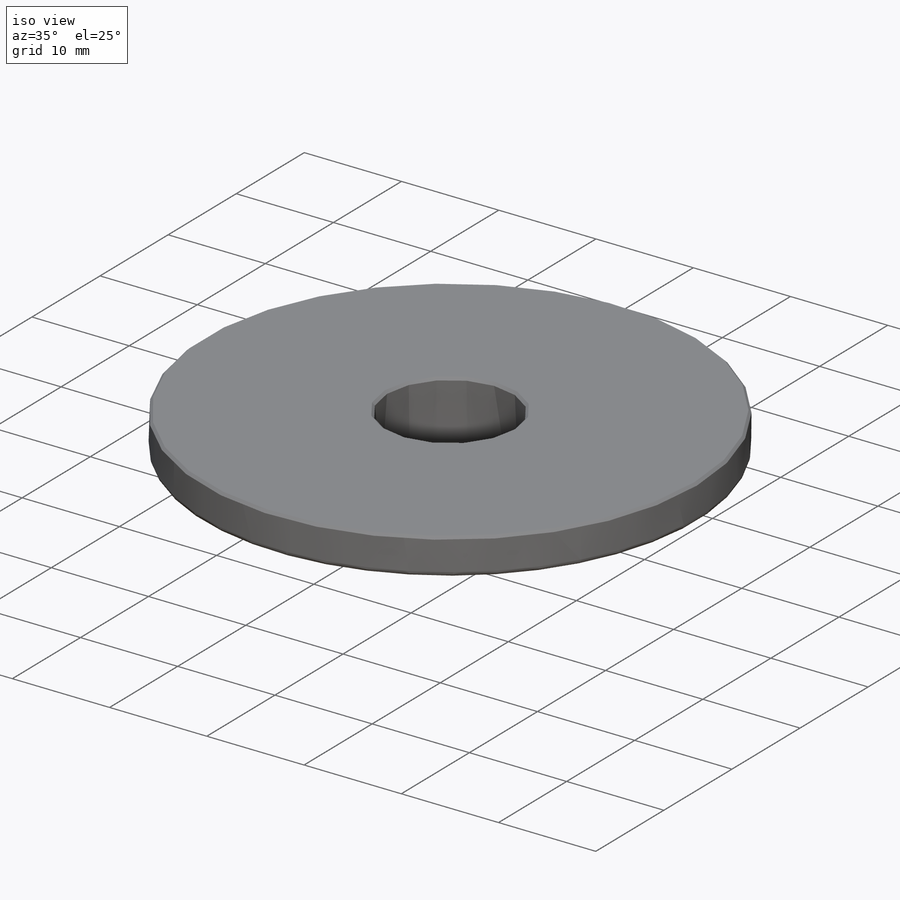
[diagram: iso view]
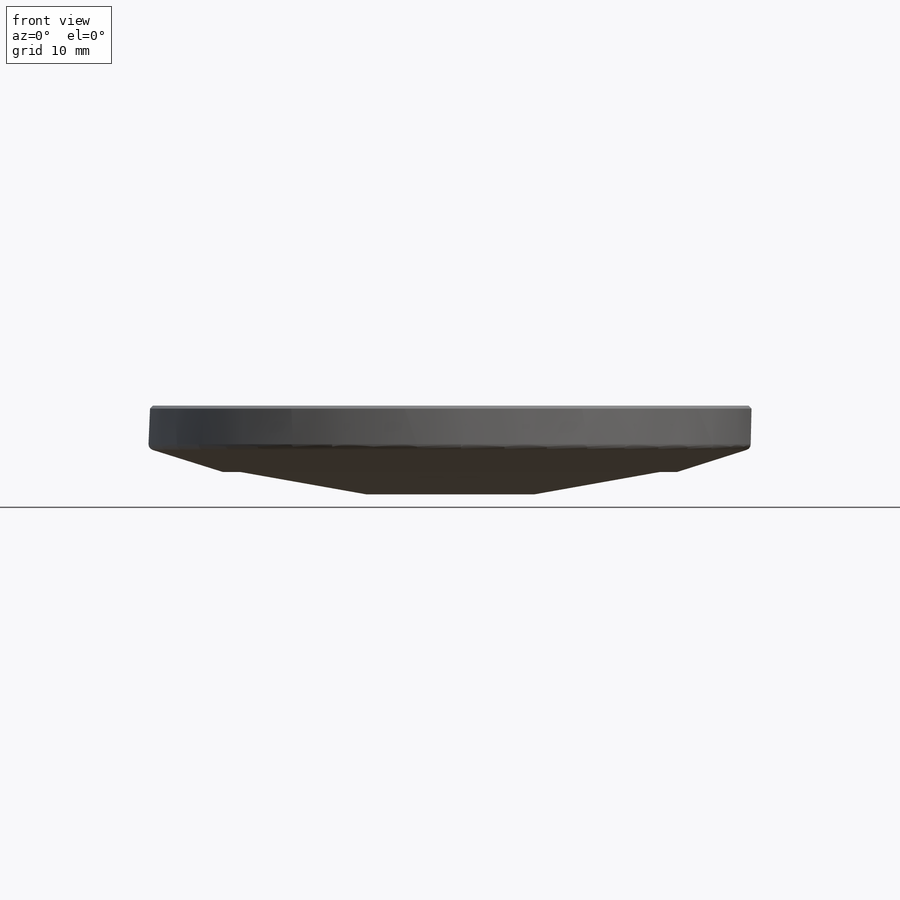
[diagram: front view]
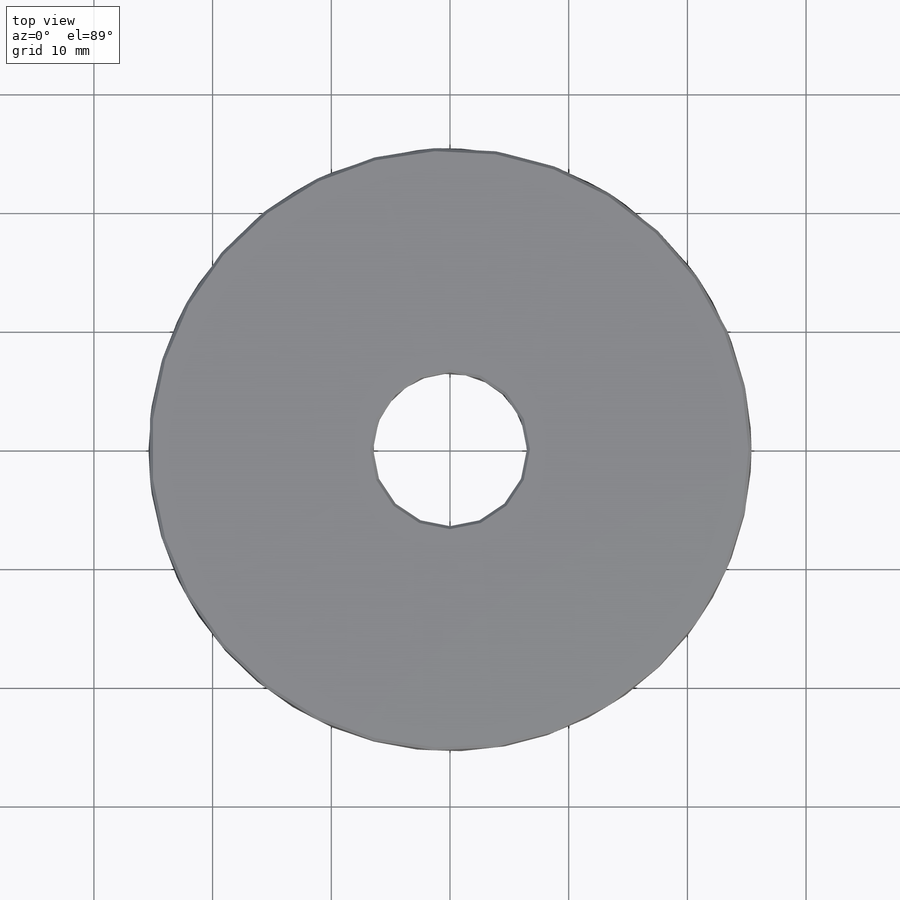
[diagram: top view]
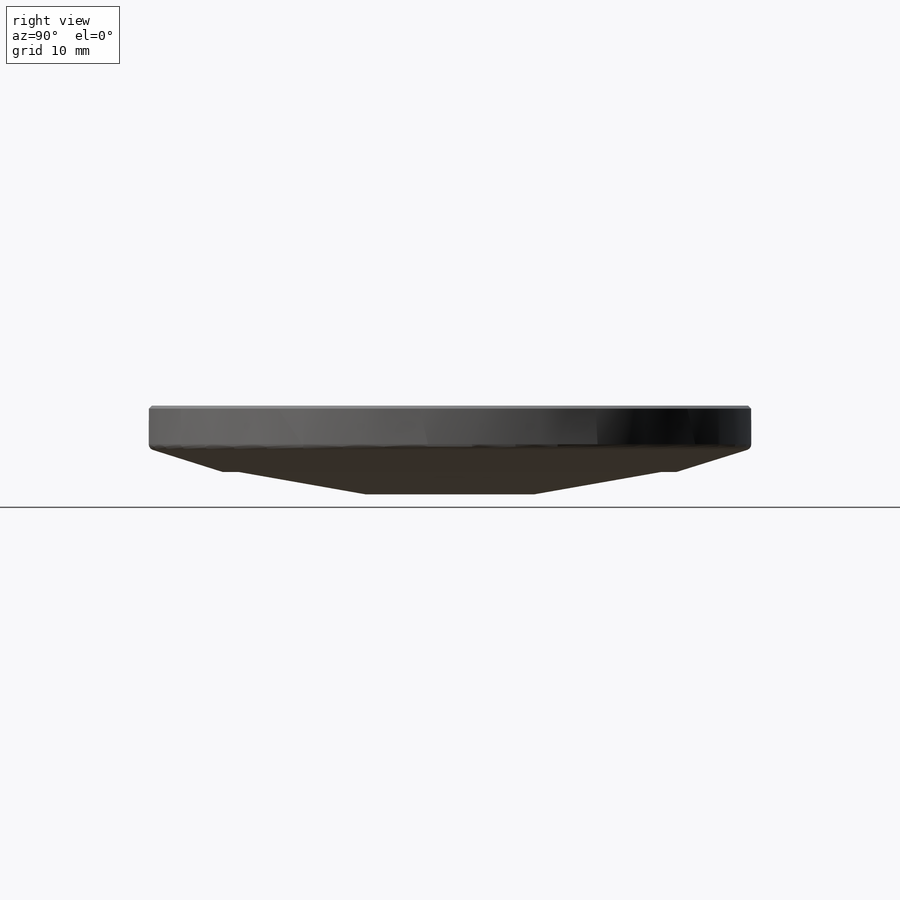
[diagram: right view]
SOLIDWORKS PART (.sldprt)
format: sldprt  version: not decoded by parser v0  size: 241,152 bytes
history: native  units: mm
features: sketch x3, fillet x2, material x1, revolve x1, cut_revolve x1, chamfer x1 + 1 further entry (+13 scaffold rows collapsed)
feature tree (23):
  scaffold x13  (default folders/planes/origin — collapsed)
  material  "304 SSTL"
  "Origin"  ID=-1
  sketch  "Sketch1"  dims[c1.D1=147.32mm c1.D5=76.2mm c2.D1=~12.243987mm c2.D2=7.62mm c2.D3=25.4mm c2.D4=3.302mm]
  sketch  "Sketch2"  dims[c1.D2=147.3454mm c1.D1=3.5052mm c2.D2=~99.265412mm c2.D3=~8.023059mm c2.D1=8.128mm c3.D3=6.477mm c3.D4=18.923mm]
  revolve  "Revolve2"  Angle=360deg
  sketch  "Sketch3"  dims[c1.D1=~0.62241mm c1.D3=~1.050117mm c2.D3=15.0deg c2.D4=~12.236498mm c2.D2=15.24mm c3.D2=190.0deg c3.D4=0.381mm c3.D5=12.7mm c3.D3=0.254mm c4.D2=0.254mm]
  cut_revolve  "Cut-Revolve1"  Angle=360deg
  chamfer  "Chamfer2"  Distance=0.254mm Angle=45deg
  fillet  "Fillet2"  Radius=0.508mm
  fillet  "Fillet3"  Radius=0.127mm
decode coverage: 8 of 8 modeling features carry decoded parameters; 1 rows unclassified (native names shown)
note: ~ marks probable driven/reference dimensions
note: suppression state not decoded; provenance and decode notes live in map.json
